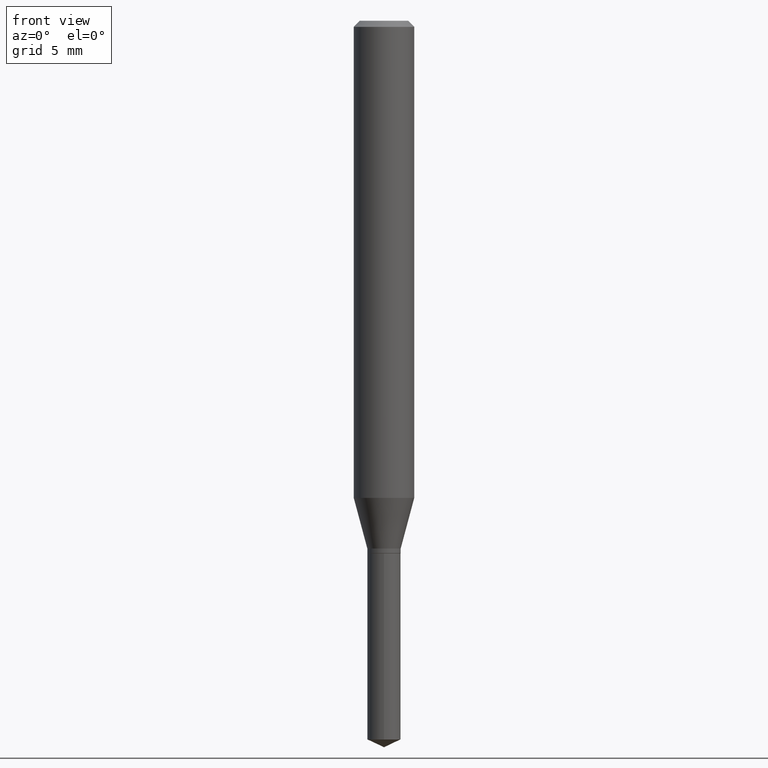
[diagram: clean part render]
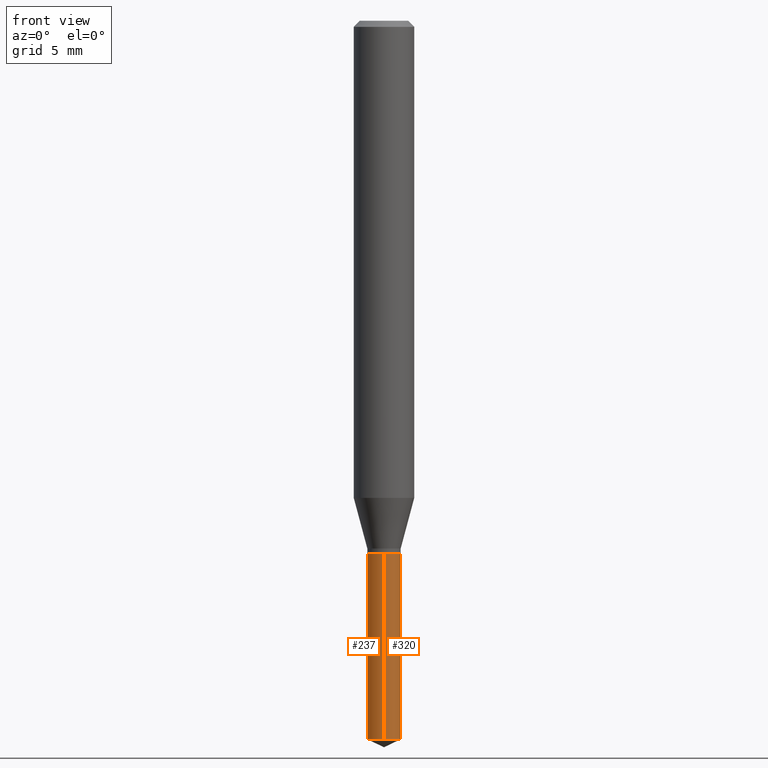
[diagram: same view with one multi-face feature highlighted, each face labeled with its STEP entity id]
A machine part, front view. The highlighted faces form ONE feature: a constant-radius fillet chain: 2 tangent blend faces with common blend radius 0.875 mm. The faces share edges in the B-rep.
Their STEP definitions:
[1] entity #237 (Cylinder):
#12 = ORIENTED_EDGE ( 'NONE', *, *, #351, .T. ) ;
#19 = DIRECTION ( 'NONE',  ( -6.982962677686265922E-15, -1.000000000000000000, 0.000000000000000000 ) ) ;
#29 = VERTEX_POINT ( 'NONE', #112 ) ;
#55 = AXIS2_PLACEMENT_3D ( 'NONE', #66, #433, #431 ) ;
#59 = CARTESIAN_POINT ( 'NONE',  ( 3.628891931600123606E-29, -5.181171809780059473E-15, -1.483935701176560595 ) ) ;
#61 = EDGE_CURVE ( 'NONE', #234, #29, #84, .T. ) ;
#62 = DIRECTION ( 'NONE',  ( -6.982962677686265922E-15, -1.000000000000000000, 3.964946289788480896E-15 ) ) ;
#66 = CARTESIAN_POINT ( 'NONE',  ( 2.690015686803650369E-29, -3.840629472727460101E-15, -1.100000000000000089 ) ) ;
#84 = LINE ( 'NONE', #159, #460 ) ;
#95 = FACE_OUTER_BOUND ( 'NONE', #155, .T. ) ;
#99 = CARTESIAN_POINT ( 'NONE',  ( 2.447819724693908613E-16, 0.03444999999999483198, -1.483935701176560595 ) ) ;
#109 = CIRCLE ( 'NONE', #240, 0.03445000000000000145 ) ;
#112 = CARTESIAN_POINT ( 'NONE',  ( 2.447819724693909106E-16, 0.03444999999999616425, -1.100000000000000089 ) ) ;
#113 = EDGE_CURVE ( 'NONE', #294, #140, #235, .T. ) ;
#120 = VECTOR ( 'NONE', #132, 39.37007874015748143 ) ;
#132 = DIRECTION ( 'NONE',  ( -2.445399690415121810E-29, 3.491580316559632610E-15, 1.000000000000000000 ) ) ;
#136 = DIRECTION ( 'NONE',  ( -2.445399690415121530E-29, 3.491580316559632610E-15, 1.000000000000000000 ) ) ;
#140 = VERTEX_POINT ( 'NONE', #279 ) ;
#142 = ORIENTED_EDGE ( 'NONE', *, *, #113, .T. ) ;
#155 = EDGE_LOOP ( 'NONE', ( #258, #12, #142, #367 ) ) ;
#159 = CARTESIAN_POINT ( 'NONE',  ( 2.447819724693813949E-16, 0.03444999999999616425, -1.100000000000000089 ) ) ;
#180 = CARTESIAN_POINT ( 'NONE',  ( -2.405630642462556803E-16, -0.03445000000000519175, -1.483935701176560595 ) ) ;
#208 = DIRECTION ( 'NONE',  ( -2.445399690415121530E-29, 3.491580316559632610E-15, 1.000000000000000000 ) ) ;
#211 = EDGE_CURVE ( 'NONE', #29, #140, #346, .T. ) ;
#231 = CARTESIAN_POINT ( 'NONE',  ( -2.405630642462649987E-16, -0.03445000000000384560, -1.099999999999999867 ) ) ;
#234 = VERTEX_POINT ( 'NONE', #99 ) ;
#235 = LINE ( 'NONE', #231, #120 ) ;
#237 = ADVANCED_FACE ( 'NONE', ( #95 ), #469, .T. ) ;
#240 = AXIS2_PLACEMENT_3D ( 'NONE', #59, #208, #19 ) ;
#258 = ORIENTED_EDGE ( 'NONE', *, *, #61, .F. ) ;
#279 = CARTESIAN_POINT ( 'NONE',  ( -2.405630642462649987E-16, -0.03445000000000384560, -1.099999999999999867 ) ) ;
#294 = VERTEX_POINT ( 'NONE', #180 ) ;
#346 = CIRCLE ( 'NONE', #55, 0.03445000000000000145 ) ;
#351 = EDGE_CURVE ( 'NONE', #234, #294, #109, .T. ) ;
#367 = ORIENTED_EDGE ( 'NONE', *, *, #211, .F. ) ;
#389 = AXIS2_PLACEMENT_3D ( 'NONE', #394, #136, #62 ) ;
#394 = CARTESIAN_POINT ( 'NONE',  ( 2.690015686803650369E-29, -3.840629472727460101E-15, -1.100000000000000089 ) ) ;
#431 = DIRECTION ( 'NONE',  ( -6.982962677686265922E-15, -1.000000000000000000, 3.964946289788480896E-15 ) ) ;
#433 = DIRECTION ( 'NONE',  ( -2.445399690415121530E-29, 3.491580316559632610E-15, 1.000000000000000000 ) ) ;
#449 = DIRECTION ( 'NONE',  ( -2.445399690415121810E-29, 3.491580316559632610E-15, 1.000000000000000000 ) ) ;
#460 = VECTOR ( 'NONE', #449, 39.37007874015748143 ) ;
#469 = CYLINDRICAL_SURFACE ( 'NONE', #389, 0.03445000000000000145 ) ;
[2] entity #320 (Cylinder):
#4 = DIRECTION ( 'NONE',  ( -6.982962677686265922E-15, -1.000000000000000000, 0.000000000000000000 ) ) ;
#22 = DIRECTION ( 'NONE',  ( -2.445399690415121530E-29, 3.491580316559632610E-15, 1.000000000000000000 ) ) ;
#29 = VERTEX_POINT ( 'NONE', #112 ) ;
#61 = EDGE_CURVE ( 'NONE', #234, #29, #84, .T. ) ;
#84 = LINE ( 'NONE', #159, #460 ) ;
#91 = CIRCLE ( 'NONE', #467, 0.03445000000000000145 ) ;
#99 = CARTESIAN_POINT ( 'NONE',  ( 2.447819724693908613E-16, 0.03444999999999483198, -1.483935701176560595 ) ) ;
#103 = CARTESIAN_POINT ( 'NONE',  ( 2.690015686803650369E-29, -3.840629472727460101E-15, -1.100000000000000089 ) ) ;
#112 = CARTESIAN_POINT ( 'NONE',  ( 2.447819724693909106E-16, 0.03444999999999616425, -1.100000000000000089 ) ) ;
#113 = EDGE_CURVE ( 'NONE', #294, #140, #235, .T. ) ;
#120 = VECTOR ( 'NONE', #132, 39.37007874015748143 ) ;
#132 = DIRECTION ( 'NONE',  ( -2.445399690415121810E-29, 3.491580316559632610E-15, 1.000000000000000000 ) ) ;
#140 = VERTEX_POINT ( 'NONE', #279 ) ;
#149 = CYLINDRICAL_SURFACE ( 'NONE', #336, 0.03445000000000000145 ) ;
#159 = CARTESIAN_POINT ( 'NONE',  ( 2.447819724693813949E-16, 0.03444999999999616425, -1.100000000000000089 ) ) ;
#171 = FACE_OUTER_BOUND ( 'NONE', #448, .T. ) ;
#180 = CARTESIAN_POINT ( 'NONE',  ( -2.405630642462556803E-16, -0.03445000000000519175, -1.483935701176560595 ) ) ;
#212 = DIRECTION ( 'NONE',  ( -6.982962677686265922E-15, -1.000000000000000000, 3.964946289788480896E-15 ) ) ;
#226 = ORIENTED_EDGE ( 'NONE', *, *, #435, .T. ) ;
#231 = CARTESIAN_POINT ( 'NONE',  ( -2.405630642462649987E-16, -0.03445000000000384560, -1.099999999999999867 ) ) ;
#234 = VERTEX_POINT ( 'NONE', #99 ) ;
#235 = LINE ( 'NONE', #231, #120 ) ;
#252 = ORIENTED_EDGE ( 'NONE', *, *, #113, .F. ) ;
#274 = EDGE_CURVE ( 'NONE', #140, #29, #91, .T. ) ;
#279 = CARTESIAN_POINT ( 'NONE',  ( -2.405630642462649987E-16, -0.03445000000000384560, -1.099999999999999867 ) ) ;
#294 = VERTEX_POINT ( 'NONE', #180 ) ;
#320 = ADVANCED_FACE ( 'NONE', ( #171 ), #149, .T. ) ;
#334 = ORIENTED_EDGE ( 'NONE', *, *, #61, .T. ) ;
#336 = AXIS2_PLACEMENT_3D ( 'NONE', #103, #403, #212 ) ;
#360 = CARTESIAN_POINT ( 'NONE',  ( 2.690015686803650369E-29, -3.840629472727460101E-15, -1.100000000000000089 ) ) ;
#403 = DIRECTION ( 'NONE',  ( -2.445399690415121530E-29, 3.491580316559632610E-15, 1.000000000000000000 ) ) ;
#410 = CARTESIAN_POINT ( 'NONE',  ( 3.628891931600123606E-29, -5.181171809780059473E-15, -1.483935701176560595 ) ) ;
#415 = DIRECTION ( 'NONE',  ( -2.445399690415121530E-29, 3.491580316559632610E-15, 1.000000000000000000 ) ) ;
#422 = AXIS2_PLACEMENT_3D ( 'NONE', #410, #415, #4 ) ;
#435 = EDGE_CURVE ( 'NONE', #294, #234, #455, .T. ) ;
#448 = EDGE_LOOP ( 'NONE', ( #226, #334, #475, #252 ) ) ;
#449 = DIRECTION ( 'NONE',  ( -2.445399690415121810E-29, 3.491580316559632610E-15, 1.000000000000000000 ) ) ;
#455 = CIRCLE ( 'NONE', #422, 0.03445000000000000145 ) ;
#460 = VECTOR ( 'NONE', #449, 39.37007874015748143 ) ;
#467 = AXIS2_PLACEMENT_3D ( 'NONE', #360, #22, #482 ) ;
#475 = ORIENTED_EDGE ( 'NONE', *, *, #274, .F. ) ;
#482 = DIRECTION ( 'NONE',  ( -6.982962677686265922E-15, -1.000000000000000000, 3.964946289788480896E-15 ) ) ;